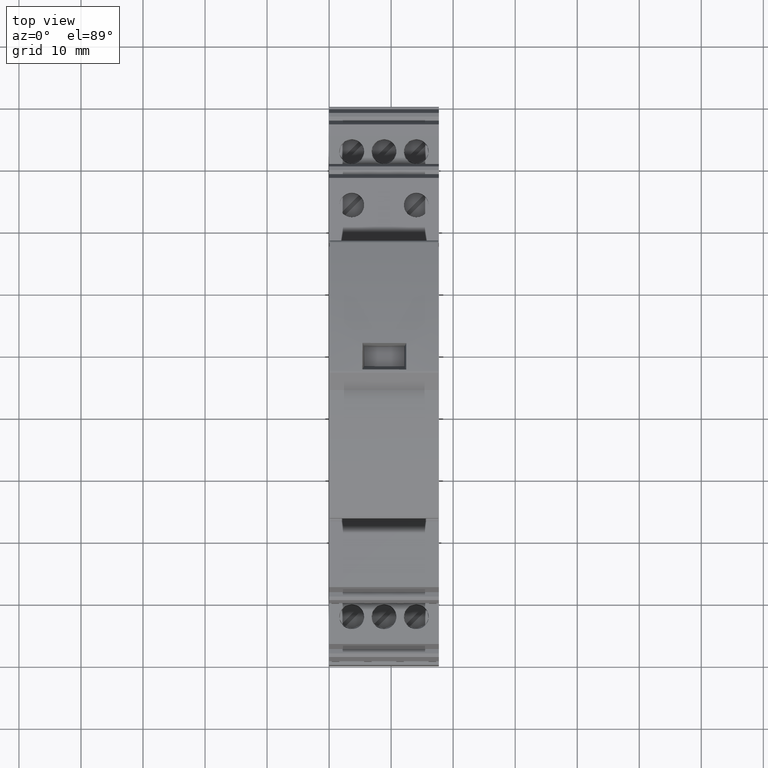
[diagram: clean part render]
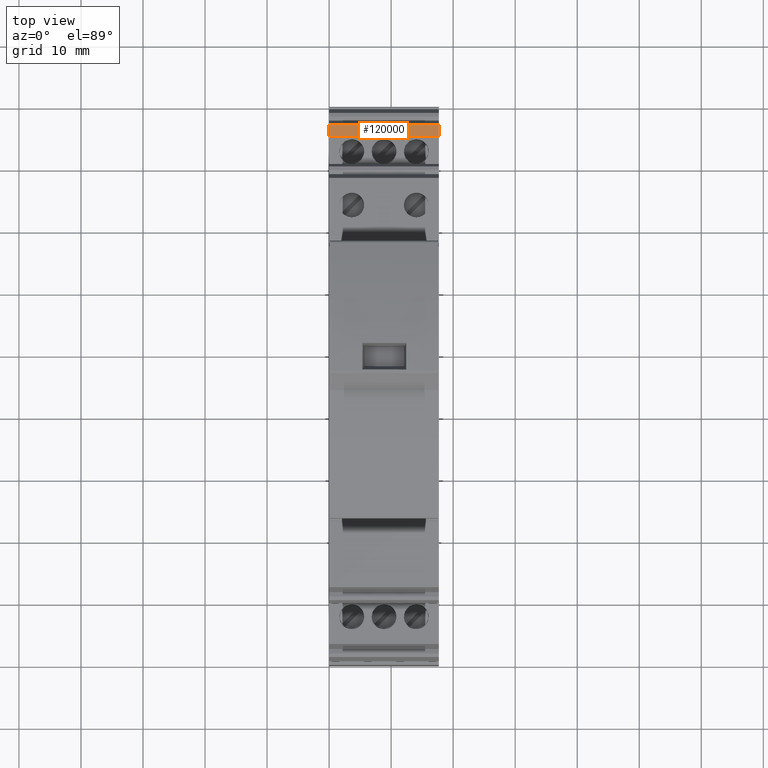
[diagram: same view with one face highlighted and labeled with its STEP entity id]
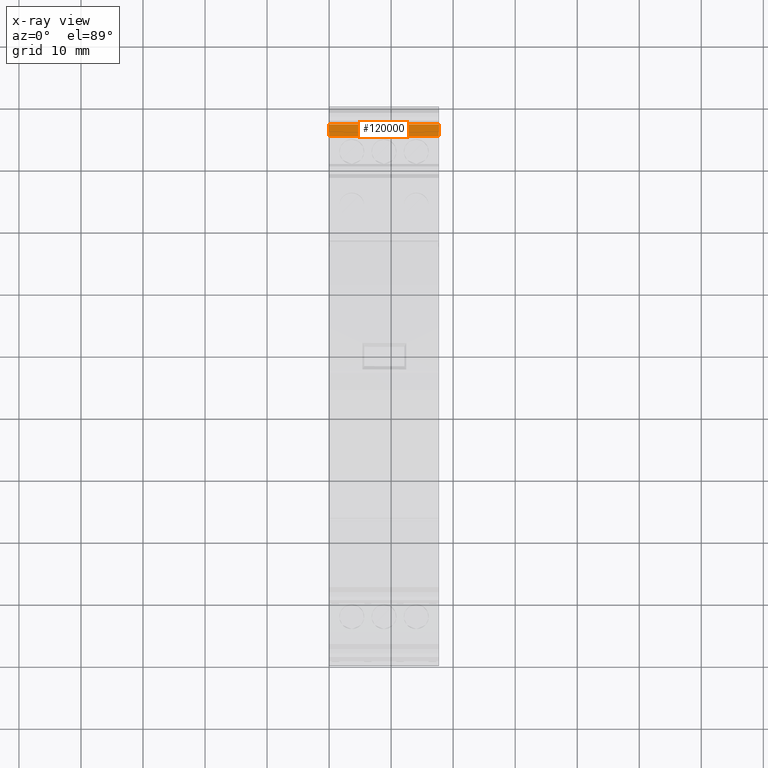
[diagram: x-ray of the same camera — body ghosted, the highlighted face saturated]
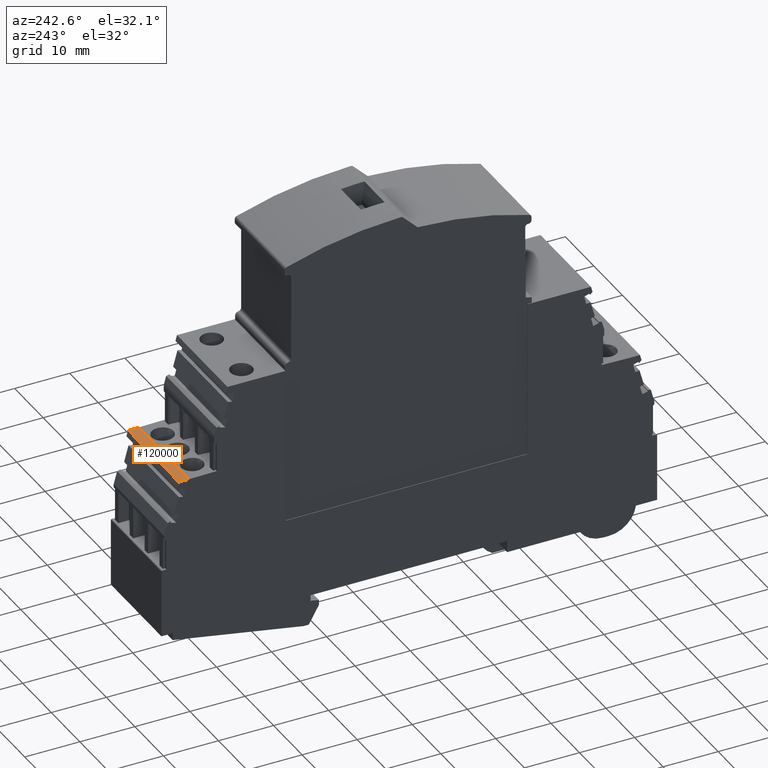
[diagram: same view with one face highlighted and labeled with its STEP entity id]
A machine part, top view. The second image highlights one B-rep face of the part: STEP entity #120000.
The next image is the same camera in x-ray: the body ghosted, the highlighted face saturated — about 0% of this face is hidden behind the body in this view.
A second angle (auxiliary view) of the same face is appended — the face is thin or edge-on in the first view.
In plain terms, the highlighted planar face has unit normal (-0, -0, -1).
Its self-contained STEP definition (entity closure, byte-faithful):
#21440=CARTESIAN_POINT('',(136.138187228773,183.990435745157,
81.7945297710161));
#21450=VERTEX_POINT('',#21440);
#21480=CARTESIAN_POINT('',(35.69805937409,184.341041491606,
82.1451333814545));
#21490=DIRECTION('',(-0.999987815352698,0.00349065141522428,
0.00349063014898079));
#21500=VECTOR('',#21490,1.);
#21510=LINE('',#21480,#21500);
#21520=CARTESIAN_POINT('',(138.03816247983,183.983803513047,
81.7878975793115));
#21530=VERTEX_POINT('',#21520);
#21540=EDGE_CURVE('',#21530,#21450,#21510,.T.);
#50920=CARTESIAN_POINT('',(137.97637794978,183.983803513047,
64.0880054137686));
#50930=VERTEX_POINT('',#50920);
#50960=CARTESIAN_POINT('',(35.6362748440406,184.341041491606,
64.4452412159116));
#50970=DIRECTION('',(-0.999987815352698,0.00349065141522428,
0.00349063014898079));
#50980=VECTOR('',#50970,1.);
#50990=LINE('',#50960,#50980);
#51000=CARTESIAN_POINT('',(136.076402698723,183.990435745157,
64.0946376054732));
#51010=VERTEX_POINT('',#51000);
#51020=EDGE_CURVE('',#50930,#51010,#50990,.T.);
#74020=CARTESIAN_POINT('',(138.155273834811,183.983803513047,
115.337693181323));
#74030=DIRECTION('',(-0.00349065141522385,-4.72809693627286E-16,
-0.999993907657791));
#74040=VECTOR('',#74030,1.);
#74050=LINE('',#74020,#74040);
#74060=EDGE_CURVE('',#21530,#50930,#74050,.T.);
#110910=CARTESIAN_POINT('',(136.255298583754,183.990435745157,
115.344325373027));
#110920=DIRECTION('',(0.00349065141522385,4.72809693627286E-16,
0.999993907657791));
#110930=VECTOR('',#110920,1.);
#110940=LINE('',#110910,#110930);
#110950=EDGE_CURVE('',#51010,#21450,#110940,.T.);
#119890=CARTESIAN_POINT('',(137.594795859509,183.98513549934,
64.0893373919469));
#119900=DIRECTION('',(-0.00349063014898133,-0.99999390765779,
1.21846473030786E-5));
#119910=DIRECTION('',(0.999987815352698,-0.00349065141522428,
-0.00349063014898079));
#119920=AXIS2_PLACEMENT_3D('',#119890,#119900,#119910);
#119930=PLANE('',#119920);
#119940=ORIENTED_EDGE('',*,*,#74060,.T.);
#119950=ORIENTED_EDGE('',*,*,#21540,.F.);
#119960=ORIENTED_EDGE('',*,*,#110950,.T.);
#119970=ORIENTED_EDGE('',*,*,#51020,.T.);
#119980=EDGE_LOOP('',(#119970,#119960,#119950,#119940));
#119990=FACE_OUTER_BOUND('',#119980,.T.);
#120000=ADVANCED_FACE('',(#119990),#119930,.F.);